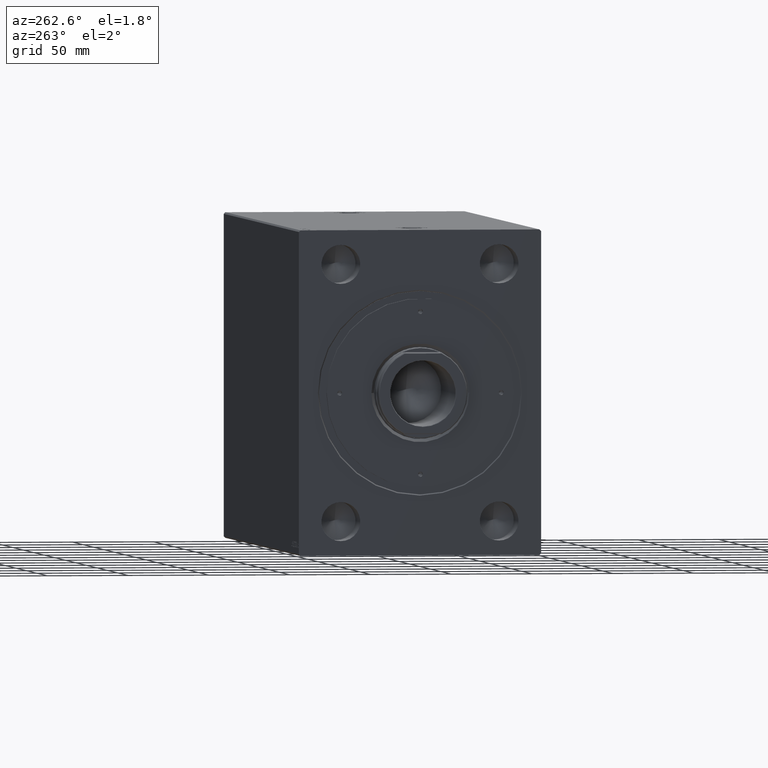
[diagram: clean part render]
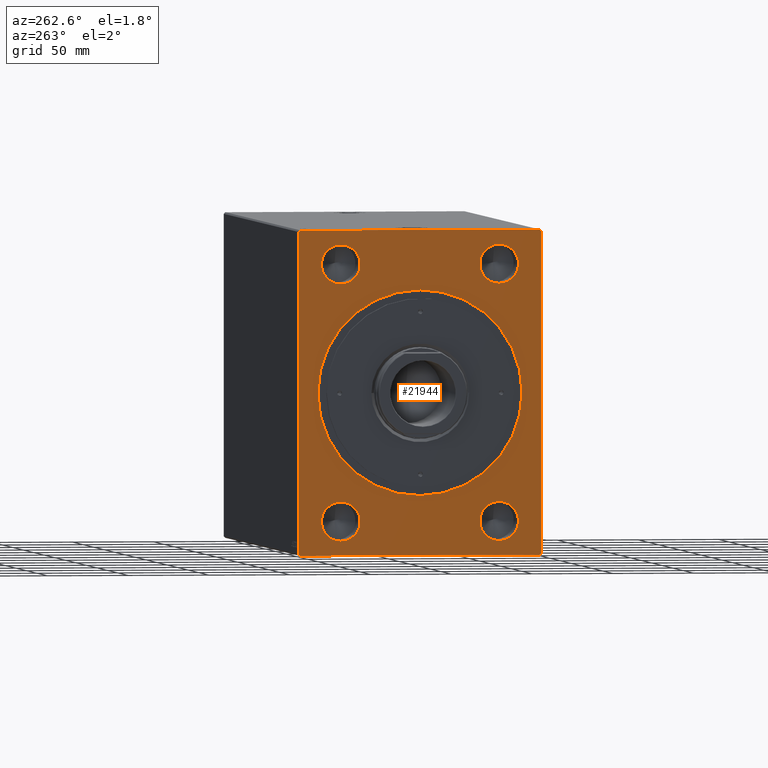
[diagram: same view with one face highlighted and labeled with its STEP entity id]
A machine part, auxiliary view. The second image highlights one B-rep face of the part: STEP entity #21944.
In plain terms, the highlighted planar face has unit normal (1, 0, 0).
Its self-contained STEP definition (entity closure, byte-faithful):
#13 = VERTEX_POINT ( 'NONE', #29155 ) ;
#57 = CIRCLE ( 'NONE', #36283, 63.20000000000003126 ) ;
#191 = ORIENTED_EDGE ( 'NONE', *, *, #1450, .F. ) ;
#289 = CARTESIAN_POINT ( 'NONE',  ( 9.797174393178825657E-16, 49.00000000000000000, -78.99999999999998579 ) ) ;
#344 = CARTESIAN_POINT ( 'NONE',  ( 9.797174393178825657E-16, 49.00000000000000000, 79.00000000000001421 ) ) ;
#648 = DIRECTION ( 'NONE',  ( 0.000000000000000000, 0.7071067811865474617, -0.7071067811865474617 ) ) ;
#1229 = ORIENTED_EDGE ( 'NONE', *, *, #30286, .F. ) ;
#1433 = AXIS2_PLACEMENT_3D ( 'NONE', #344, #23696, #30572 ) ;
#1450 = EDGE_CURVE ( 'NONE', #15717, #23361, #42638, .T. ) ;
#1453 = LINE ( 'NONE', #9004, #11111 ) ;
#1530 = CARTESIAN_POINT ( 'NONE',  ( 9.797174393178825657E-16, -49.00000000000000000, -79.00000000000000000 ) ) ;
#1562 = EDGE_CURVE ( 'NONE', #13, #5730, #2137, .T. ) ;
#1627 = VERTEX_POINT ( 'NONE', #19651 ) ;
#1808 = VERTEX_POINT ( 'NONE', #40769 ) ;
#2121 = ORIENTED_EDGE ( 'NONE', *, *, #1562, .F. ) ;
#2137 = CIRCLE ( 'NONE', #1433, 11.99999999999999645 ) ;
#2166 = EDGE_CURVE ( 'NONE', #11199, #1808, #12066, .T. ) ;
#2178 = DIRECTION ( 'NONE',  ( 1.000000000000000000, 0.000000000000000000, 0.000000000000000000 ) ) ;
#2579 = EDGE_LOOP ( 'NONE', ( #14606, #31413, #11681, #191, #23407, #15591, #22722, #6037 ) ) ;
#3639 = VECTOR ( 'NONE', #14837, 1000.000000000000000 ) ;
#3707 = EDGE_CURVE ( 'NONE', #15888, #41891, #57, .T. ) ;
#4960 = EDGE_CURVE ( 'NONE', #1627, #8890, #19465, .T. ) ;
#5270 = CIRCLE ( 'NONE', #35809, 63.20000000000003126 ) ;
#5632 = DIRECTION ( 'NONE',  ( -1.000000000000000000, -0.000000000000000000, -0.000000000000000000 ) ) ;
#5730 = VERTEX_POINT ( 'NONE', #23456 ) ;
#5732 = DIRECTION ( 'NONE',  ( 0.000000000000000000, 0.000000000000000000, -1.000000000000000000 ) ) ;
#5791 = CARTESIAN_POINT ( 'NONE',  ( 9.797174393178825657E-16, -49.00000000000000000, -91.00000000000000000 ) ) ;
#6037 = ORIENTED_EDGE ( 'NONE', *, *, #41026, .F. ) ;
#6767 = EDGE_CURVE ( 'NONE', #21250, #27262, #29979, .T. ) ;
#6810 = CARTESIAN_POINT ( 'NONE',  ( 0.000000000000000000, 74.00000000000000000, 99.99999999999995737 ) ) ;
#6909 = CARTESIAN_POINT ( 'NONE',  ( 9.797174393178825657E-16, -49.00000000000000000, 79.00000000000001421 ) ) ;
#7077 = CARTESIAN_POINT ( 'NONE',  ( 0.000000000000000000, 75.00000000000001421, -99.00000000000004263 ) ) ;
#7176 = DIRECTION ( 'NONE',  ( -1.000000000000000000, -0.000000000000000000, -0.000000000000000000 ) ) ;
#8074 = VECTOR ( 'NONE', #648, 1000.000000000000114 ) ;
#8890 = VERTEX_POINT ( 'NONE', #25964 ) ;
#9004 = CARTESIAN_POINT ( 'NONE',  ( 0.000000000000000000, 74.00000000000001421, -100.0000000000000426 ) ) ;
#9035 = LINE ( 'NONE', #36160, #3639 ) ;
#9247 = AXIS2_PLACEMENT_3D ( 'NONE', #6909, #34481, #20683 ) ;
#9290 = FACE_BOUND ( 'NONE', #23378, .T. ) ;
#9421 = EDGE_CURVE ( 'NONE', #5730, #13, #12257, .T. ) ;
#9527 = LINE ( 'NONE', #36656, #39361 ) ;
#9716 = CARTESIAN_POINT ( 'NONE',  ( 0.000000000000000000, 7.739767770611276825E-15, -63.20000000000003126 ) ) ;
#10144 = CARTESIAN_POINT ( 'NONE',  ( 9.797174393178825657E-16, -49.00000000000000000, 79.00000000000001421 ) ) ;
#10584 = DIRECTION ( 'NONE',  ( 0.000000000000000000, 0.000000000000000000, 1.000000000000000000 ) ) ;
#10657 = CARTESIAN_POINT ( 'NONE',  ( 0.000000000000000000, -74.99999999999997158, -99.00000000000005684 ) ) ;
#11109 = LINE ( 'NONE', #10657, #8074 ) ;
#11111 = VECTOR ( 'NONE', #18141, 1000.000000000000114 ) ;
#11199 = VERTEX_POINT ( 'NONE', #36356 ) ;
#11542 = DIRECTION ( 'NONE',  ( 0.000000000000000000, 0.000000000000000000, 1.000000000000000000 ) ) ;
#11681 = ORIENTED_EDGE ( 'NONE', *, *, #23451, .F. ) ;
#12066 = CIRCLE ( 'NONE', #9247, 11.99999999999999645 ) ;
#12257 = CIRCLE ( 'NONE', #25740, 11.99999999999999645 ) ;
#12415 = FACE_OUTER_BOUND ( 'NONE', #2579, .T. ) ;
#13485 = DIRECTION ( 'NONE',  ( -1.000000000000000000, -0.000000000000000000, -0.000000000000000000 ) ) ;
#13854 = EDGE_CURVE ( 'NONE', #41891, #15888, #5270, .T. ) ;
#13905 = CARTESIAN_POINT ( 'NONE',  ( 9.797174393178825657E-16, -49.00000000000000000, -67.00000000000000000 ) ) ;
#14568 = VERTEX_POINT ( 'NONE', #5791 ) ;
#14606 = ORIENTED_EDGE ( 'NONE', *, *, #17882, .F. ) ;
#14837 = DIRECTION ( 'NONE',  ( 0.000000000000000000, -1.000000000000000000, -9.376883653928687363E-17 ) ) ;
#15591 = ORIENTED_EDGE ( 'NONE', *, *, #30695, .F. ) ;
#15634 = DIRECTION ( 'NONE',  ( -1.000000000000000000, -0.000000000000000000, -0.000000000000000000 ) ) ;
#15717 = VERTEX_POINT ( 'NONE', #29435 ) ;
#15888 = VERTEX_POINT ( 'NONE', #22497 ) ;
#15972 = PLANE ( 'NONE',  #26681 ) ;
#16113 = CARTESIAN_POINT ( 'NONE',  ( 0.000000000000000000, -75.00000000000000000, 98.99999999999994316 ) ) ;
#16121 = VERTEX_POINT ( 'NONE', #6810 ) ;
#16715 = VERTEX_POINT ( 'NONE', #38982 ) ;
#17106 = AXIS2_PLACEMENT_3D ( 'NONE', #26079, #15634, #32322 ) ;
#17882 = EDGE_CURVE ( 'NONE', #27262, #16121, #9527, .T. ) ;
#17976 = DIRECTION ( 'NONE',  ( -1.000000000000000000, -0.000000000000000000, -0.000000000000000000 ) ) ;
#18141 = DIRECTION ( 'NONE',  ( 0.000000000000000000, 0.7071067811865474617, 0.7071067811865474617 ) ) ;
#18641 = DIRECTION ( 'NONE',  ( 1.000000000000000000, 0.000000000000000000, 0.000000000000000000 ) ) ;
#19183 = CARTESIAN_POINT ( 'NONE',  ( 9.797174393178825657E-16, 49.00000000000000000, -90.99999999999998579 ) ) ;
#19465 = LINE ( 'NONE', #36147, #27735 ) ;
#19651 = CARTESIAN_POINT ( 'NONE',  ( 0.000000000000000000, -74.00000000000000000, 99.99999999999994316 ) ) ;
#20683 = DIRECTION ( 'NONE',  ( 0.000000000000000000, 0.000000000000000000, 1.000000000000000000 ) ) ;
#21250 = VERTEX_POINT ( 'NONE', #39651 ) ;
#21944 = ADVANCED_FACE ( 'NONE', ( #23293, #9290, #26398, #26182, #25970, #12415 ), #15972, .F. ) ;
#22197 = CARTESIAN_POINT ( 'NONE',  ( 0.000000000000000000, 0.000000000000000000, 0.000000000000000000 ) ) ;
#22396 = DIRECTION ( 'NONE',  ( 0.000000000000000000, 1.000000000000000000, 0.000000000000000000 ) ) ;
#22497 = CARTESIAN_POINT ( 'NONE',  ( 0.000000000000000000, 0.000000000000000000, 63.20000000000003126 ) ) ;
#22561 = EDGE_LOOP ( 'NONE', ( #35088, #42988 ) ) ;
#22563 = LINE ( 'NONE', #16113, #23742 ) ;
#22722 = ORIENTED_EDGE ( 'NONE', *, *, #4960, .F. ) ;
#22851 = DIRECTION ( 'NONE',  ( 0.000000000000000000, 0.000000000000000000, -1.000000000000000000 ) ) ;
#23293 = FACE_BOUND ( 'NONE', #35707, .T. ) ;
#23361 = VERTEX_POINT ( 'NONE', #34379 ) ;
#23378 = EDGE_LOOP ( 'NONE', ( #25244, #32509 ) ) ;
#23407 = ORIENTED_EDGE ( 'NONE', *, *, #35530, .F. ) ;
#23451 = EDGE_CURVE ( 'NONE', #23361, #21250, #1453, .T. ) ;
#23456 = CARTESIAN_POINT ( 'NONE',  ( 9.797174393178825657E-16, 49.00000000000000000, 91.00000000000001421 ) ) ;
#23482 = CIRCLE ( 'NONE', #17106, 11.99999999999999645 ) ;
#23696 = DIRECTION ( 'NONE',  ( -1.000000000000000000, -0.000000000000000000, -0.000000000000000000 ) ) ;
#23742 = VECTOR ( 'NONE', #26768, 1000.000000000000000 ) ;
#24224 = EDGE_CURVE ( 'NONE', #16715, #31952, #26017, .T. ) ;
#24590 = EDGE_LOOP ( 'NONE', ( #1229, #32632 ) ) ;
#24784 = ORIENTED_EDGE ( 'NONE', *, *, #9421, .F. ) ;
#24855 = VECTOR ( 'NONE', #22396, 1000.000000000000000 ) ;
#25244 = ORIENTED_EDGE ( 'NONE', *, *, #35638, .F. ) ;
#25438 = DIRECTION ( 'NONE',  ( 0.000000000000000000, 0.000000000000000000, 1.000000000000000000 ) ) ;
#25740 = AXIS2_PLACEMENT_3D ( 'NONE', #43010, #5632, #25438 ) ;
#25964 = CARTESIAN_POINT ( 'NONE',  ( 0.000000000000000000, -75.00000000000000000, 98.99999999999994316 ) ) ;
#25970 = FACE_BOUND ( 'NONE', #36998, .T. ) ;
#26017 = CIRCLE ( 'NONE', #38129, 11.99999999999999645 ) ;
#26079 = CARTESIAN_POINT ( 'NONE',  ( 9.797174393178825657E-16, -49.00000000000000000, -79.00000000000000000 ) ) ;
#26182 = FACE_BOUND ( 'NONE', #24590, .T. ) ;
#26246 = AXIS2_PLACEMENT_3D ( 'NONE', #10144, #13485, #10584 ) ;
#26398 = FACE_BOUND ( 'NONE', #22561, .T. ) ;
#26448 = ORIENTED_EDGE ( 'NONE', *, *, #13854, .T. ) ;
#26681 = AXIS2_PLACEMENT_3D ( 'NONE', #33088, #2178, #22851 ) ;
#26768 = DIRECTION ( 'NONE',  ( 0.000000000000000000, 1.401796748264086446E-16, -1.000000000000000000 ) ) ;
#26824 = DIRECTION ( 'NONE',  ( 0.000000000000000000, 0.000000000000000000, -1.000000000000000000 ) ) ;
#27078 = ORIENTED_EDGE ( 'NONE', *, *, #3707, .T. ) ;
#27262 = VERTEX_POINT ( 'NONE', #32654 ) ;
#27735 = VECTOR ( 'NONE', #29897, 1000.000000000000114 ) ;
#28552 = VERTEX_POINT ( 'NONE', #30743 ) ;
#29075 = CIRCLE ( 'NONE', #26246, 11.99999999999999645 ) ;
#29155 = CARTESIAN_POINT ( 'NONE',  ( 9.797174393178825657E-16, 49.00000000000000000, 67.00000000000001421 ) ) ;
#29357 = AXIS2_PLACEMENT_3D ( 'NONE', #1530, #32638, #11542 ) ;
#29435 = CARTESIAN_POINT ( 'NONE',  ( 0.000000000000000000, -73.99999999999998579, -100.0000000000000426 ) ) ;
#29897 = DIRECTION ( 'NONE',  ( 0.000000000000000000, -0.7071067811865474617, -0.7071067811865474617 ) ) ;
#29979 = LINE ( 'NONE', #7077, #36349 ) ;
#30079 = CIRCLE ( 'NONE', #29357, 11.99999999999999645 ) ;
#30286 = EDGE_CURVE ( 'NONE', #1808, #11199, #29075, .T. ) ;
#30552 = AXIS2_PLACEMENT_3D ( 'NONE', #289, #7176, #34534 ) ;
#30572 = DIRECTION ( 'NONE',  ( 0.000000000000000000, 0.000000000000000000, 1.000000000000000000 ) ) ;
#30592 = CARTESIAN_POINT ( 'NONE',  ( 0.000000000000000000, 0.000000000000000000, 0.000000000000000000 ) ) ;
#30695 = EDGE_CURVE ( 'NONE', #8890, #28552, #22563, .T. ) ;
#30743 = CARTESIAN_POINT ( 'NONE',  ( 0.000000000000000000, -74.99999999999997158, -99.00000000000005684 ) ) ;
#31413 = ORIENTED_EDGE ( 'NONE', *, *, #6767, .F. ) ;
#31758 = DIRECTION ( 'NONE',  ( 0.000000000000000000, 0.000000000000000000, 1.000000000000000000 ) ) ;
#31952 = VERTEX_POINT ( 'NONE', #19183 ) ;
#32322 = DIRECTION ( 'NONE',  ( 0.000000000000000000, 0.000000000000000000, 1.000000000000000000 ) ) ;
#32509 = ORIENTED_EDGE ( 'NONE', *, *, #39317, .F. ) ;
#32632 = ORIENTED_EDGE ( 'NONE', *, *, #2166, .F. ) ;
#32638 = DIRECTION ( 'NONE',  ( -1.000000000000000000, -0.000000000000000000, -0.000000000000000000 ) ) ;
#32654 = CARTESIAN_POINT ( 'NONE',  ( 0.000000000000000000, 75.00000000000000000, 98.99999999999995737 ) ) ;
#33088 = CARTESIAN_POINT ( 'NONE',  ( 0.000000000000000000, 0.000000000000000000, 0.000000000000000000 ) ) ;
#33313 = DIRECTION ( 'NONE',  ( 0.000000000000000000, -0.7071067811865474617, 0.7071067811865474617 ) ) ;
#34379 = CARTESIAN_POINT ( 'NONE',  ( 0.000000000000000000, 74.00000000000001421, -100.0000000000000426 ) ) ;
#34481 = DIRECTION ( 'NONE',  ( -1.000000000000000000, -0.000000000000000000, -0.000000000000000000 ) ) ;
#34534 = DIRECTION ( 'NONE',  ( 0.000000000000000000, 0.000000000000000000, 1.000000000000000000 ) ) ;
#35088 = ORIENTED_EDGE ( 'NONE', *, *, #24224, .F. ) ;
#35530 = EDGE_CURVE ( 'NONE', #28552, #15717, #11109, .T. ) ;
#35638 = EDGE_CURVE ( 'NONE', #40041, #14568, #30079, .T. ) ;
#35707 = EDGE_LOOP ( 'NONE', ( #24784, #2121 ) ) ;
#35809 = AXIS2_PLACEMENT_3D ( 'NONE', #22197, #18641, #5732 ) ;
#36147 = CARTESIAN_POINT ( 'NONE',  ( 0.000000000000000000, -74.00000000000000000, 99.99999999999994316 ) ) ;
#36160 = CARTESIAN_POINT ( 'NONE',  ( 0.000000000000000000, 74.00000000000000000, 99.99999999999995737 ) ) ;
#36283 = AXIS2_PLACEMENT_3D ( 'NONE', #30592, #37283, #26824 ) ;
#36349 = VECTOR ( 'NONE', #43798, 1000.000000000000000 ) ;
#36356 = CARTESIAN_POINT ( 'NONE',  ( 9.797174393178825657E-16, -49.00000000000000000, 67.00000000000001421 ) ) ;
#36656 = CARTESIAN_POINT ( 'NONE',  ( 0.000000000000000000, 75.00000000000000000, 98.99999999999995737 ) ) ;
#36998 = EDGE_LOOP ( 'NONE', ( #27078, #26448 ) ) ;
#37283 = DIRECTION ( 'NONE',  ( 1.000000000000000000, 0.000000000000000000, 0.000000000000000000 ) ) ;
#37973 = EDGE_CURVE ( 'NONE', #31952, #16715, #39082, .T. ) ;
#38129 = AXIS2_PLACEMENT_3D ( 'NONE', #42217, #17976, #31758 ) ;
#38873 = CARTESIAN_POINT ( 'NONE',  ( 0.000000000000000000, -73.99999999999998579, -100.0000000000000426 ) ) ;
#38982 = CARTESIAN_POINT ( 'NONE',  ( 9.797174393178825657E-16, 49.00000000000000000, -66.99999999999998579 ) ) ;
#39082 = CIRCLE ( 'NONE', #30552, 11.99999999999999645 ) ;
#39317 = EDGE_CURVE ( 'NONE', #14568, #40041, #23482, .T. ) ;
#39361 = VECTOR ( 'NONE', #33313, 1000.000000000000114 ) ;
#39651 = CARTESIAN_POINT ( 'NONE',  ( 0.000000000000000000, 75.00000000000001421, -99.00000000000004263 ) ) ;
#40041 = VERTEX_POINT ( 'NONE', #13905 ) ;
#40769 = CARTESIAN_POINT ( 'NONE',  ( 9.797174393178825657E-16, -49.00000000000000000, 91.00000000000001421 ) ) ;
#41026 = EDGE_CURVE ( 'NONE', #16121, #1627, #9035, .T. ) ;
#41891 = VERTEX_POINT ( 'NONE', #9716 ) ;
#42217 = CARTESIAN_POINT ( 'NONE',  ( 9.797174393178825657E-16, 49.00000000000000000, -78.99999999999998579 ) ) ;
#42638 = LINE ( 'NONE', #38873, #24855 ) ;
#42988 = ORIENTED_EDGE ( 'NONE', *, *, #37973, .F. ) ;
#43010 = CARTESIAN_POINT ( 'NONE',  ( 9.797174393178825657E-16, 49.00000000000000000, 79.00000000000001421 ) ) ;
#43798 = DIRECTION ( 'NONE',  ( 0.000000000000000000, -7.008983741320432232E-17, 1.000000000000000000 ) ) ;